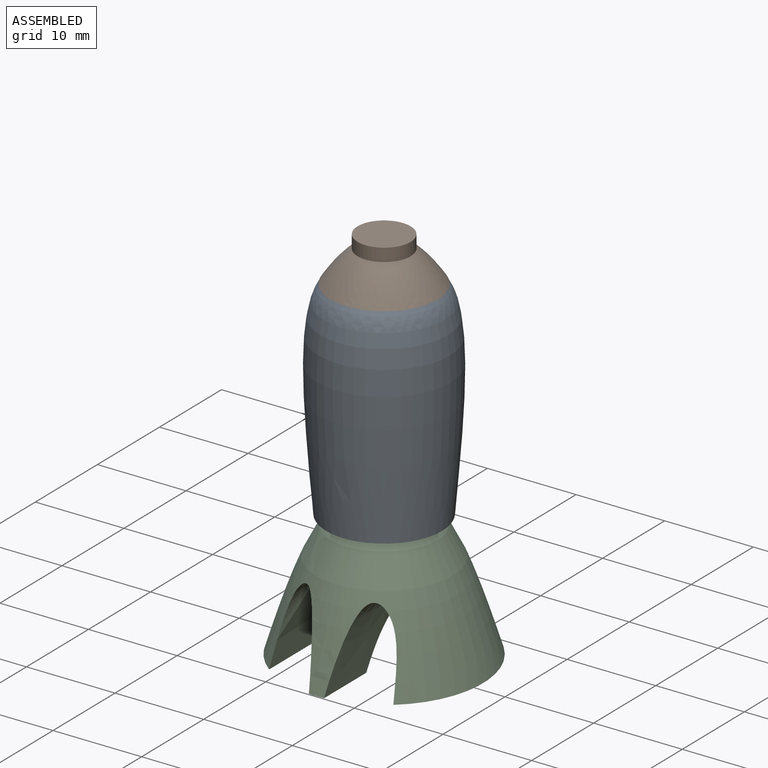
[diagram: assembled view]
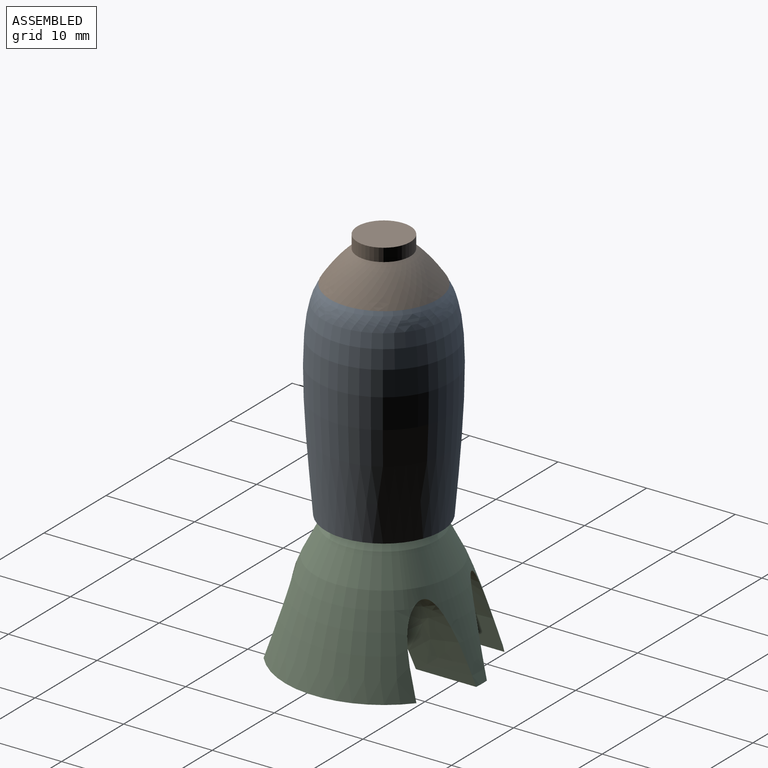
[diagram: assembled view, second angle]
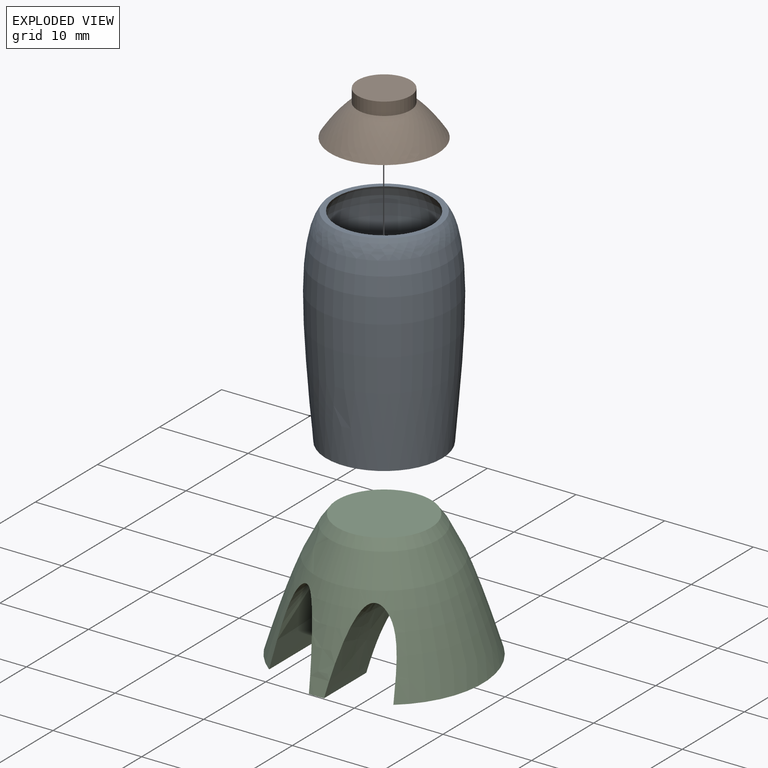
[diagram: exploded view]
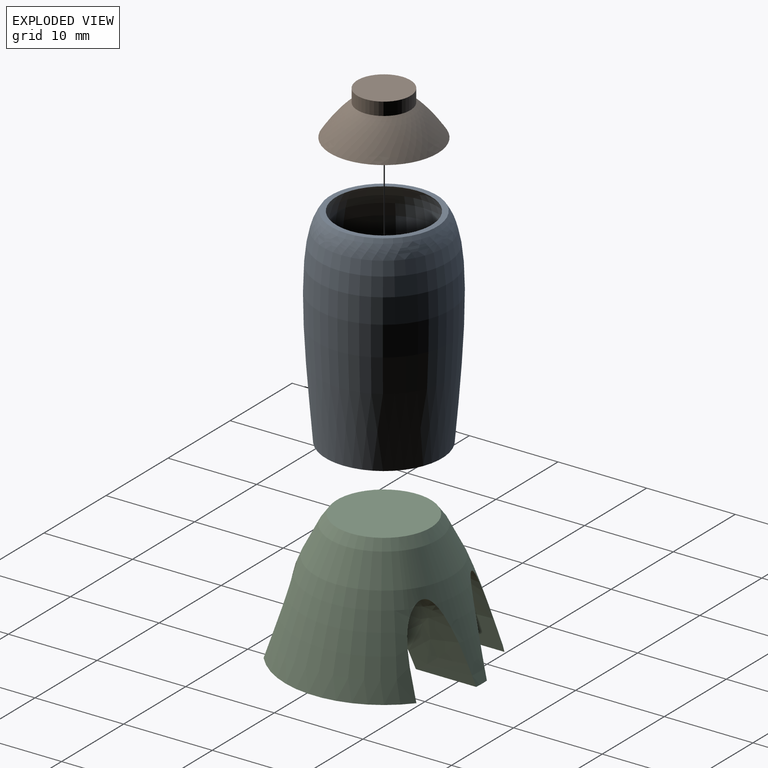
[diagram: exploded view, second angle]
ASSEMBLY  parts=3 mates=2
PART A: 5 faces, bbox 15x15x23.5 mm
  f0: revolved ~23.48x14.99mm, area 1063.2mm2, adj f1,f2
  f1: plane 13.11x13.11mm, normal (0,0,-1), area 134.9mm2, adj f0
  f2: plane 11.98x11.98mm, normal (0,0,1), area 21.9mm2, adj f0,f3
  f3: revolved ~22.98x13.99mm, area 970.4mm2, adj f2,f4
  f4: plane 12.19x12.19mm, normal (0,0,1), area 116.7mm2, adj f3
PART B: 4 faces, bbox 12.1x12.1x5 mm
  f0: plane 12.14x12.14mm, normal (0,0,-1), area 115.7mm2, adj f3
  f1: plane 5.98x5.98mm, normal (0,0,1), area 28.1mm2, adj f2
  f2: cylinder r=2.99mm len=5.98mm, axis (0,0,-1), area 27.5mm2, adj f1,f3
  f3: revolved ~12.14x12.14mm, area 137.5mm2, adj f0,f2
PART C: 9 faces, bbox 22.3x22.3x14.3 mm
  f0: revolved ~22.27x22.27mm, area 653.7mm2, adj f1,f2,f3,f5,f6,f7,f8
  f1: plane 17.73x4.38mm, normal (0,0,-1), area 54.2mm2, adj f0,f8
  f2: plane 6.86x1.69mm, normal (0,0,-1), area 11.4mm2, adj f0,f4,f7,f8
  f3: plane 6.86x1.69mm, normal (0,0,-1), area 11.4mm2, adj f0,f4,f7,f8
  f4: revolved ~8.83x8.83mm, area 61mm2, adj f2,f3,f7,f8
  f5: plane 17.24x4.08mm, normal (0,0,-1), area 48.9mm2, adj f0,f7
  f6: plane 10.59x10.59mm, normal (0,0,1), area 88.1mm2, adj f0
  f7: extruded ~22.22x8.98mm, area 293.9mm2, adj f0,f2,f3,f4,f5
  f8: extruded ~22.27x8.98mm, area 298.5mm2, adj f0,f1,f2,f3,f4
PLACE A t=(19.55,15.18,-10.4)mm
PLACE B t=(19.8,15.18,-11.22)mm
PLACE C t=(20.35,15.18,-8.34)mm
MATE fastened A.f2 <-> B.f2  axis (0,0,1) through (-10.27,15.18,29.45)mm
MATE fastened C.f6 <-> A.f1  axis (0,0,1) through (-10.27,15.18,5.98)mm
